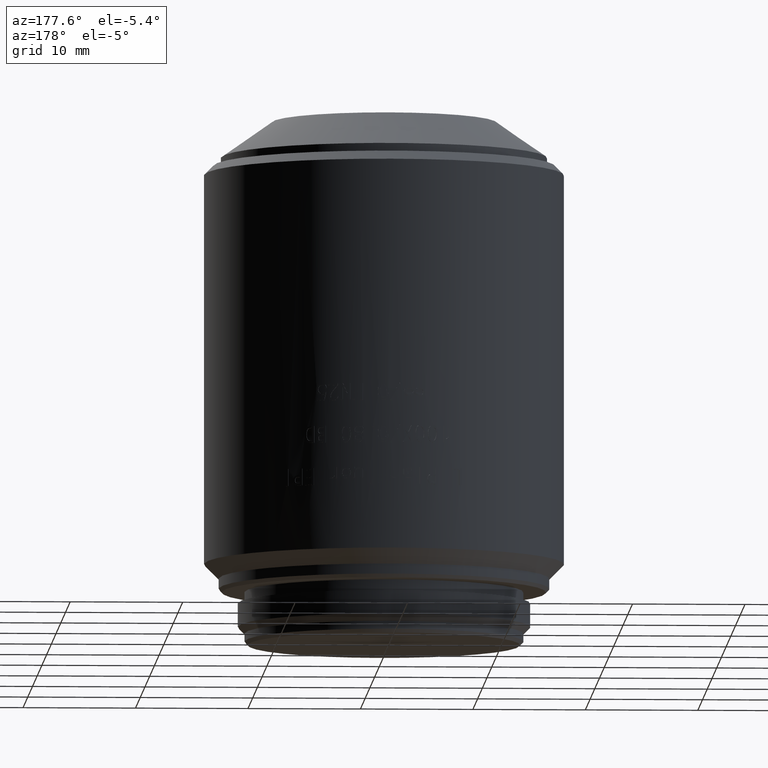
[diagram: clean part render]
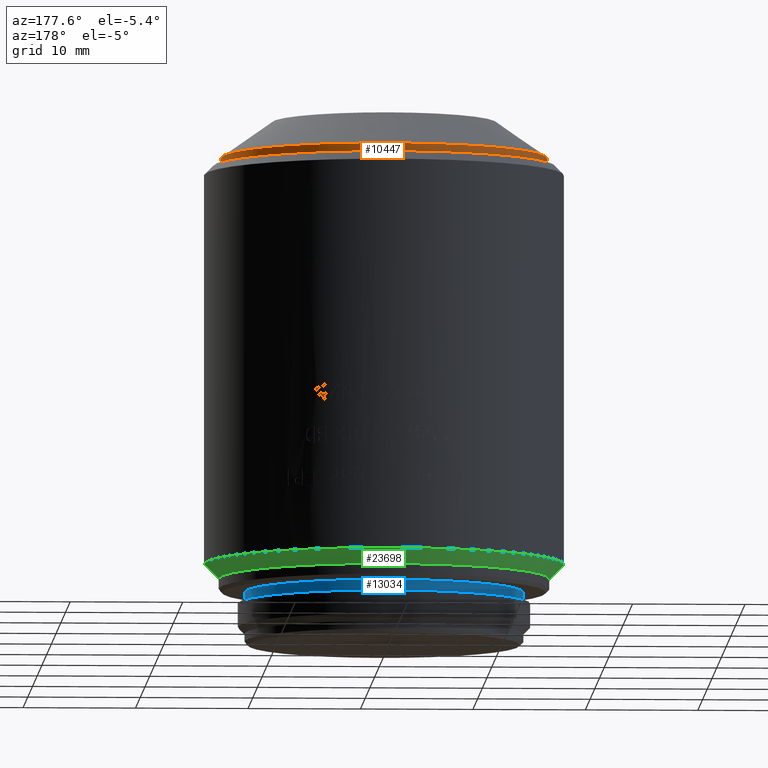
[diagram: same view with three faces highlighted in distinct colors, each labeled with its STEP entity id]
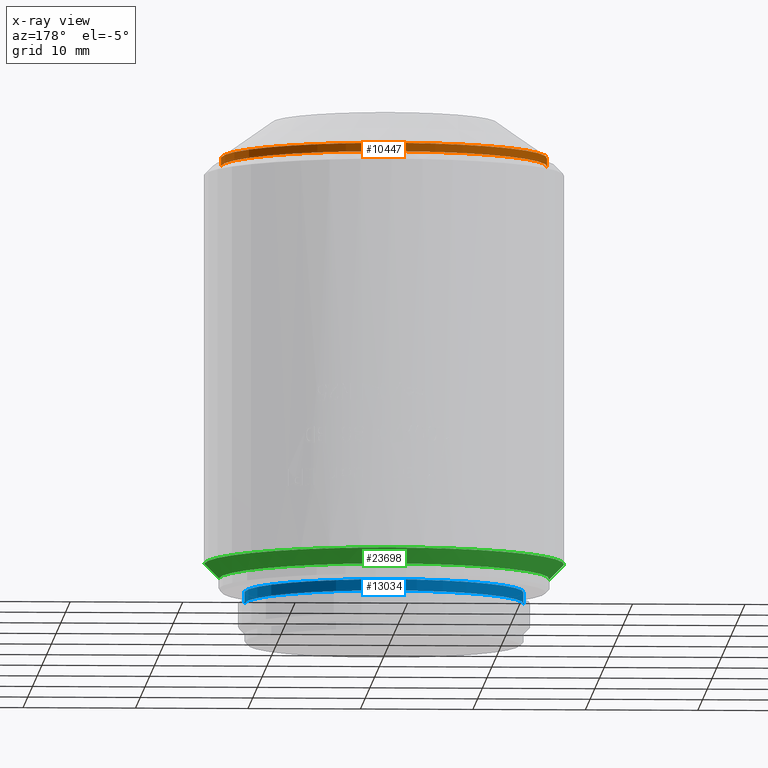
[diagram: x-ray of the same camera — body ghosted, the three highlighted faces saturated]
A machine part, auxiliary view with three faces highlighted in distinct colors.
The next image is the same camera in x-ray (body ghosted, the three faces saturated) — at least one of them is partly hidden behind the body in this view.
Their STEP definitions:

[orange] entity #10447 — the highlighted cylindrical surface (partial cylindrical patch) has radius 14.5 mm, axis along (0, 0, 1).
#589 = ORIENTED_EDGE ( 'NONE', *, *, #18156, .F. ) ;
#1897 = VERTEX_POINT ( 'NONE', #29165 ) ;
#1917 = AXIS2_PLACEMENT_3D ( 'NONE', #14912, #19097, #9915 ) ;
#3915 = DIRECTION ( 'NONE',  ( 0.000000000000000000, 0.000000000000000000, 1.000000000000000000 ) ) ;
#4682 = CIRCLE ( 'NONE', #27359, 14.50000000000000000 ) ;
#5365 = ORIENTED_EDGE ( 'NONE', *, *, #13845, .T. ) ;
#6575 = CARTESIAN_POINT ( 'NONE',  ( 0.000000000000000000, 0.000000000000000000, 42.70000000000000284 ) ) ;
#8373 = EDGE_CURVE ( 'NONE', #29180, #15277, #4682, .T. ) ;
#8459 = DIRECTION ( 'NONE',  ( 0.000000000000000000, 0.000000000000000000, 1.000000000000000000 ) ) ;
#8899 = VECTOR ( 'NONE', #10690, 1000.000000000000000 ) ;
#8909 = CYLINDRICAL_SURFACE ( 'NONE', #14276, 14.50000000000000000 ) ;
#9455 = EDGE_CURVE ( 'NONE', #15277, #10858, #11452, .T. ) ;
#9915 = DIRECTION ( 'NONE',  ( 1.000000000000000000, 0.000000000000000000, 0.000000000000000000 ) ) ;
#10447 = ADVANCED_FACE ( 'NONE', ( #10968 ), #8909, .T. ) ;
#10690 = DIRECTION ( 'NONE',  ( 0.000000000000000000, 0.000000000000000000, 1.000000000000000000 ) ) ;
#10858 = VERTEX_POINT ( 'NONE', #12011 ) ;
#10968 = FACE_OUTER_BOUND ( 'NONE', #29205, .T. ) ;
#11452 = LINE ( 'NONE', #13957, #11766 ) ;
#11766 = VECTOR ( 'NONE', #25356, 1000.000000000000000 ) ;
#12011 = CARTESIAN_POINT ( 'NONE',  ( -14.50000000000000888, 0.000000000000000000, 43.44899999999999807 ) ) ;
#12693 = CARTESIAN_POINT ( 'NONE',  ( 14.50000000000000000, 0.000000000000000000, 42.70000000000000284 ) ) ;
#12774 = DIRECTION ( 'NONE',  ( 1.000000000000000000, 0.000000000000000000, 0.000000000000000000 ) ) ;
#13845 = EDGE_CURVE ( 'NONE', #10858, #1897, #22236, .T. ) ;
#13957 = CARTESIAN_POINT ( 'NONE',  ( -14.50000000000000000, 1.775737858763662015E-15, 42.70000000000000284 ) ) ;
#14276 = AXIS2_PLACEMENT_3D ( 'NONE', #28734, #8459, #15257 ) ;
#14912 = CARTESIAN_POINT ( 'NONE',  ( 0.000000000000000000, 0.000000000000000000, 43.44899999999999807 ) ) ;
#15257 = DIRECTION ( 'NONE',  ( 1.000000000000000000, 0.000000000000000000, 0.000000000000000000 ) ) ;
#15277 = VERTEX_POINT ( 'NONE', #16353 ) ;
#15871 = CARTESIAN_POINT ( 'NONE',  ( 14.50000000000000000, 0.000000000000000000, 42.70000000000000284 ) ) ;
#16353 = CARTESIAN_POINT ( 'NONE',  ( -14.50000000000000000, 1.775737858763662015E-15, 42.70000000000000284 ) ) ;
#18156 = EDGE_CURVE ( 'NONE', #29180, #1897, #28759, .T. ) ;
#18903 = ORIENTED_EDGE ( 'NONE', *, *, #9455, .T. ) ;
#19097 = DIRECTION ( 'NONE',  ( 0.000000000000000000, 0.000000000000000000, -1.000000000000000000 ) ) ;
#20967 = ORIENTED_EDGE ( 'NONE', *, *, #8373, .T. ) ;
#22236 = CIRCLE ( 'NONE', #1917, 14.50000000000000000 ) ;
#25356 = DIRECTION ( 'NONE',  ( 0.000000000000000000, 0.000000000000000000, 1.000000000000000000 ) ) ;
#27359 = AXIS2_PLACEMENT_3D ( 'NONE', #6575, #3915, #12774 ) ;
#28734 = CARTESIAN_POINT ( 'NONE',  ( 0.000000000000000000, 0.000000000000000000, 42.70000000000000284 ) ) ;
#28759 = LINE ( 'NONE', #15871, #8899 ) ;
#29165 = CARTESIAN_POINT ( 'NONE',  ( 14.50000000000000888, 1.775737858763663593E-15, 43.44899999999999807 ) ) ;
#29180 = VERTEX_POINT ( 'NONE', #12693 ) ;
#29205 = EDGE_LOOP ( 'NONE', ( #20967, #18903, #5365, #589 ) ) ;

[blue] entity #13034 — the highlighted cylindrical surface (partial cylindrical patch) has radius 12.4 mm, axis along (0, 0, 1).
#549 = CARTESIAN_POINT ( 'NONE',  ( 12.40000000000000036, 0.000000000000000000, 3.700000000000000178 ) ) ;
#637 = VERTEX_POINT ( 'NONE', #6124 ) ;
#943 = VECTOR ( 'NONE', #11481, 1000.000000000000000 ) ;
#2031 = CARTESIAN_POINT ( 'NONE',  ( 0.000000000000000000, 0.000000000000000000, 3.700000000000000178 ) ) ;
#2455 = VERTEX_POINT ( 'NONE', #17642 ) ;
#6124 = CARTESIAN_POINT ( 'NONE',  ( 12.40000000000000036, 0.000000000000000000, 4.700000000000000178 ) ) ;
#6403 = DIRECTION ( 'NONE',  ( 0.000000000000000000, 0.000000000000000000, 1.000000000000000000 ) ) ;
#7169 = ORIENTED_EDGE ( 'NONE', *, *, #15005, .F. ) ;
#7865 = DIRECTION ( 'NONE',  ( -1.000000000000000000, 0.000000000000000000, 0.000000000000000000 ) ) ;
#8376 = DIRECTION ( 'NONE',  ( 0.000000000000000000, 0.000000000000000000, -1.000000000000000000 ) ) ;
#9552 = VECTOR ( 'NONE', #6403, 1000.000000000000000 ) ;
#10118 = VERTEX_POINT ( 'NONE', #18455 ) ;
#10427 = EDGE_CURVE ( 'NONE', #2455, #16688, #28882, .T. ) ;
#10835 = AXIS2_PLACEMENT_3D ( 'NONE', #21181, #16596, #7865 ) ;
#11481 = DIRECTION ( 'NONE',  ( 0.000000000000000000, 0.000000000000000000, 1.000000000000000000 ) ) ;
#12795 = DIRECTION ( 'NONE',  ( 1.000000000000000000, 0.000000000000000000, 0.000000000000000000 ) ) ;
#12891 = CARTESIAN_POINT ( 'NONE',  ( -12.40000000000000036, 1.518562030942717967E-15, 3.700000000000000178 ) ) ;
#13034 = ADVANCED_FACE ( 'NONE', ( #17395 ), #21687, .T. ) ;
#13675 = ORIENTED_EDGE ( 'NONE', *, *, #10427, .T. ) ;
#13842 = LINE ( 'NONE', #549, #943 ) ;
#15005 = EDGE_CURVE ( 'NONE', #2455, #10118, #25414, .T. ) ;
#15165 = DIRECTION ( 'NONE',  ( 0.000000000000000000, 0.000000000000000000, 1.000000000000000000 ) ) ;
#15212 = EDGE_CURVE ( 'NONE', #10118, #637, #13842, .T. ) ;
#15613 = CARTESIAN_POINT ( 'NONE',  ( 0.000000000000000000, 0.000000000000000000, 3.700000000000000178 ) ) ;
#15702 = AXIS2_PLACEMENT_3D ( 'NONE', #15613, #15165, #12795 ) ;
#15794 = ORIENTED_EDGE ( 'NONE', *, *, #15212, .F. ) ;
#16596 = DIRECTION ( 'NONE',  ( 0.000000000000000000, 0.000000000000000000, -1.000000000000000000 ) ) ;
#16688 = VERTEX_POINT ( 'NONE', #28087 ) ;
#17395 = FACE_OUTER_BOUND ( 'NONE', #24610, .T. ) ;
#17642 = CARTESIAN_POINT ( 'NONE',  ( -12.40000000000000036, 1.518562030942717967E-15, 3.700000000000000178 ) ) ;
#18455 = CARTESIAN_POINT ( 'NONE',  ( 12.40000000000000036, 0.000000000000000000, 3.700000000000000178 ) ) ;
#19474 = ORIENTED_EDGE ( 'NONE', *, *, #25844, .T. ) ;
#19925 = DIRECTION ( 'NONE',  ( -1.000000000000000000, 0.000000000000000000, 0.000000000000000000 ) ) ;
#21181 = CARTESIAN_POINT ( 'NONE',  ( 0.000000000000000000, 0.000000000000000000, 4.700000000000000178 ) ) ;
#21687 = CYLINDRICAL_SURFACE ( 'NONE', #15702, 12.40000000000000036 ) ;
#24526 = AXIS2_PLACEMENT_3D ( 'NONE', #2031, #8376, #19925 ) ;
#24610 = EDGE_LOOP ( 'NONE', ( #7169, #13675, #19474, #15794 ) ) ;
#25414 = CIRCLE ( 'NONE', #24526, 12.40000000000000036 ) ;
#25844 = EDGE_CURVE ( 'NONE', #16688, #637, #27904, .T. ) ;
#27904 = CIRCLE ( 'NONE', #10835, 12.40000000000000036 ) ;
#28087 = CARTESIAN_POINT ( 'NONE',  ( -12.40000000000000036, 1.518562030942717967E-15, 4.700000000000000178 ) ) ;
#28882 = LINE ( 'NONE', #12891, #9552 ) ;

[green] entity #23698 — the highlighted conical surface has half-angle 45 deg.
#11 = EDGE_CURVE ( 'NONE', #10849, #9792, #9886, .T. ) ;
#813 = ORIENTED_EDGE ( 'NONE', *, *, #22409, .F. ) ;
#1127 = CARTESIAN_POINT ( 'NONE',  ( 0.000000000000000000, 0.000000000000000000, 7.200000000000000178 ) ) ;
#1641 = DIRECTION ( 'NONE',  ( 0.000000000000000000, 0.000000000000000000, -1.000000000000000000 ) ) ;
#3159 = LINE ( 'NONE', #21770, #10791 ) ;
#3298 = AXIS2_PLACEMENT_3D ( 'NONE', #27690, #11995, #25754 ) ;
#3676 = VERTEX_POINT ( 'NONE', #18830 ) ;
#5783 = VECTOR ( 'NONE', #26272, 1000.000000000000000 ) ;
#5809 = DIRECTION ( 'NONE',  ( -1.000000000000000000, 0.000000000000000000, 0.000000000000000000 ) ) ;
#5840 = ORIENTED_EDGE ( 'NONE', *, *, #11377, .T. ) ;
#7015 = CIRCLE ( 'NONE', #25928, 16.00000000000000000 ) ;
#9792 = VERTEX_POINT ( 'NONE', #21129 ) ;
#9886 = CIRCLE ( 'NONE', #12244, 14.69999999999999929 ) ;
#10224 = CARTESIAN_POINT ( 'NONE',  ( 0.000000000000000000, 0.000000000000000000, 5.899999999999999467 ) ) ;
#10434 = CARTESIAN_POINT ( 'NONE',  ( -14.69999999999999929, 1.800230794746609123E-15, 5.899999999999999467 ) ) ;
#10791 = VECTOR ( 'NONE', #14815, 1000.000000000000000 ) ;
#10849 = VERTEX_POINT ( 'NONE', #14074 ) ;
#11377 = EDGE_CURVE ( 'NONE', #10849, #3676, #14869, .T. ) ;
#11995 = DIRECTION ( 'NONE',  ( 0.000000000000000000, 0.000000000000000000, 1.000000000000000000 ) ) ;
#12244 = AXIS2_PLACEMENT_3D ( 'NONE', #10224, #1641, #5809 ) ;
#14074 = CARTESIAN_POINT ( 'NONE',  ( -14.69999999999999929, 1.879832836691187127E-15, 5.899999999999999467 ) ) ;
#14170 = VERTEX_POINT ( 'NONE', #18184 ) ;
#14212 = FACE_OUTER_BOUND ( 'NONE', #19575, .T. ) ;
#14815 = DIRECTION ( 'NONE',  ( 0.7071067811865470176, 0.000000000000000000, 0.7071067811865480168 ) ) ;
#14869 = LINE ( 'NONE', #10434, #5783 ) ;
#15568 = DIRECTION ( 'NONE',  ( 0.000000000000000000, 0.000000000000000000, 1.000000000000000000 ) ) ;
#17504 = DIRECTION ( 'NONE',  ( -1.000000000000000000, 0.000000000000000000, 0.000000000000000000 ) ) ;
#18184 = CARTESIAN_POINT ( 'NONE',  ( 15.99999999999999645, 0.000000000000000000, 7.200000000000000178 ) ) ;
#18539 = ORIENTED_EDGE ( 'NONE', *, *, #20475, .F. ) ;
#18830 = CARTESIAN_POINT ( 'NONE',  ( -15.99999999999999645, 1.959434878635764737E-15, 7.200000000000000178 ) ) ;
#19575 = EDGE_LOOP ( 'NONE', ( #25661, #5840, #18539, #813 ) ) ;
#20475 = EDGE_CURVE ( 'NONE', #14170, #3676, #7015, .T. ) ;
#21129 = CARTESIAN_POINT ( 'NONE',  ( 14.69999999999999929, 0.000000000000000000, 5.899999999999999467 ) ) ;
#21770 = CARTESIAN_POINT ( 'NONE',  ( 14.69999999999999929, 0.000000000000000000, 5.899999999999999467 ) ) ;
#22409 = EDGE_CURVE ( 'NONE', #9792, #14170, #3159, .T. ) ;
#23698 = ADVANCED_FACE ( 'NONE', ( #14212 ), #27392, .T. ) ;
#25661 = ORIENTED_EDGE ( 'NONE', *, *, #11, .F. ) ;
#25754 = DIRECTION ( 'NONE',  ( 1.000000000000000000, 0.000000000000000000, 0.000000000000000000 ) ) ;
#25928 = AXIS2_PLACEMENT_3D ( 'NONE', #1127, #15568, #17504 ) ;
#26272 = DIRECTION ( 'NONE',  ( -0.7071067811865470176, 8.659560562354926695E-17, 0.7071067811865480168 ) ) ;
#27392 = CONICAL_SURFACE ( 'NONE', #3298, 14.69999999999999929, 0.7853981633974476129 ) ;
#27690 = CARTESIAN_POINT ( 'NONE',  ( 0.000000000000000000, 0.000000000000000000, 5.899999999999999467 ) ) ;